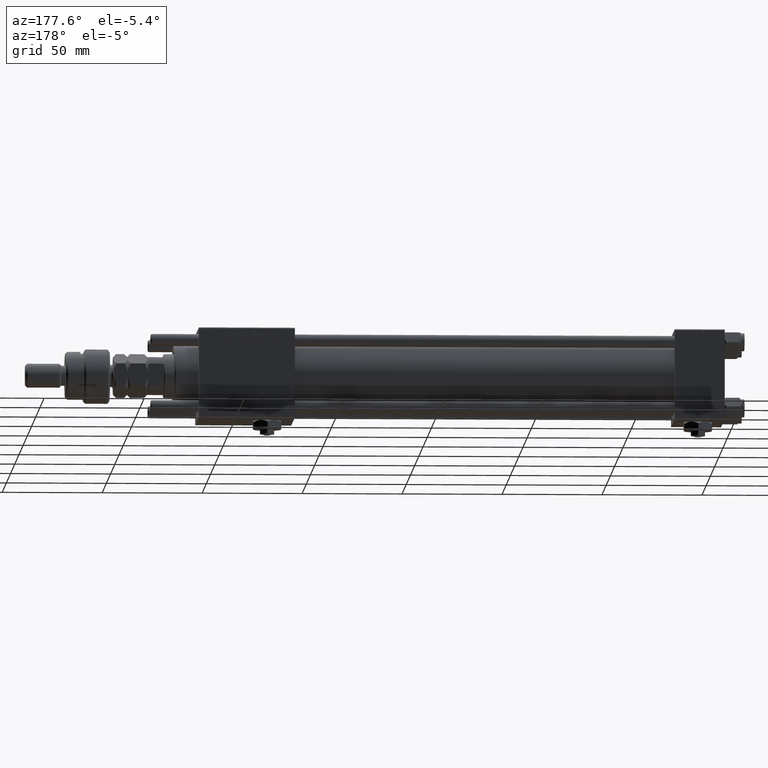
[diagram: clean part render]
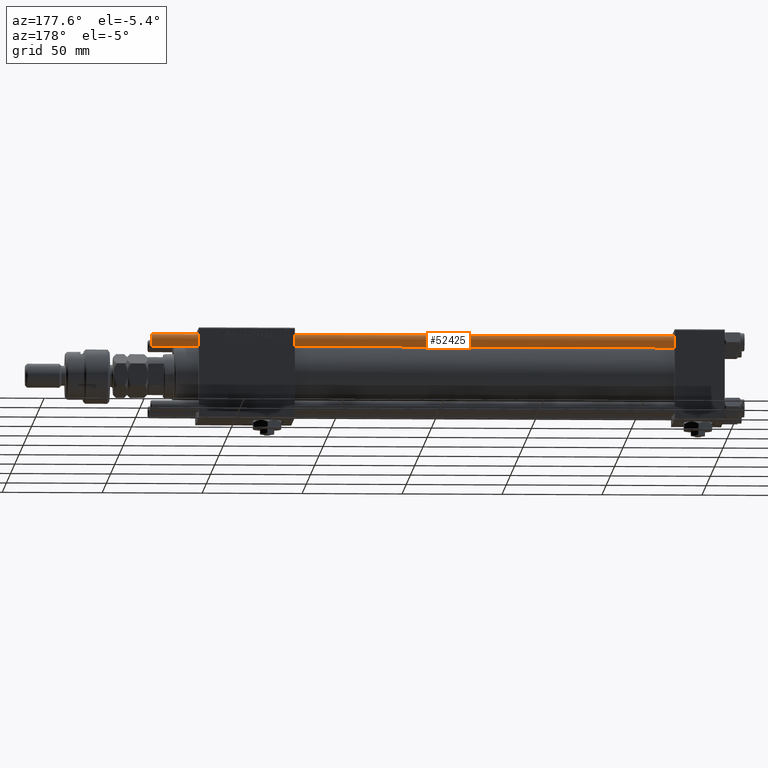
[diagram: same view with one face highlighted and labeled with its STEP entity id]
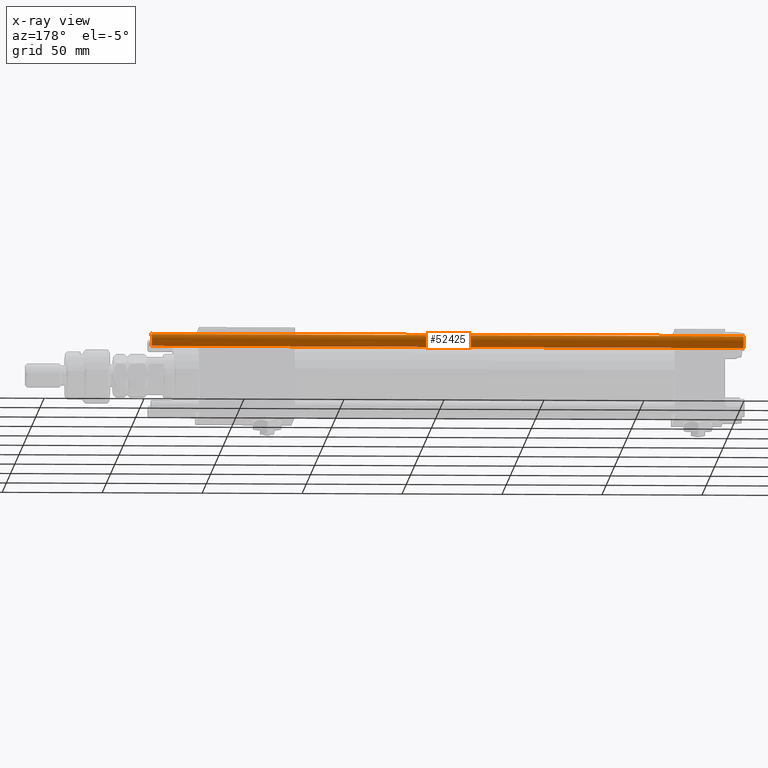
[diagram: x-ray of the same camera — body ghosted, the highlighted face saturated]
A machine part, auxiliary view. The second image highlights one B-rep face of the part: STEP entity #52425.
The next image is the same camera in x-ray: the body ghosted, the highlighted face saturated — about 0% of this face is hidden behind the body in this view.
In plain terms, the highlighted cylindrical surface (edge-blend (fillet) strip) has radius 3 mm, axis along (1, -0, -0).
Its self-contained STEP definition (entity closure, byte-faithful):
#1306 = EDGE_CURVE ( 'NONE', #43273, #22188, #52522, .T. ) ;
#4101 = ORIENTED_EDGE ( 'NONE', *, *, #14958, .T. ) ;
#8744 = DIRECTION ( 'NONE',  ( -0.000000000000000000, -0.000000000000000000, -1.000000000000000000 ) ) ;
#9663 = DIRECTION ( 'NONE',  ( -1.000000000000000000, 0.000000000000000000, 0.000000000000000000 ) ) ;
#10319 = ORIENTED_EDGE ( 'NONE', *, *, #58018, .T. ) ;
#11004 = CARTESIAN_POINT ( 'NONE',  ( 0.000000000000000000, 0.000000000000000000, 0.5000000000000004441 ) ) ;
#11725 = VERTEX_POINT ( 'NONE', #33255 ) ;
#12870 = DIRECTION ( 'NONE',  ( 0.000000000000000000, 0.000000000000000000, -1.000000000000000000 ) ) ;
#13550 = AXIS2_PLACEMENT_3D ( 'NONE', #47696, #12870, #60267 ) ;
#14958 = EDGE_CURVE ( 'NONE', #22188, #35670, #25997, .T. ) ;
#19124 = DIRECTION ( 'NONE',  ( -0.000000000000000000, -0.000000000000000000, -1.000000000000000000 ) ) ;
#21567 = DIRECTION ( 'NONE',  ( -0.000000000000000000, -0.000000000000000000, 1.000000000000000000 ) ) ;
#22188 = VERTEX_POINT ( 'NONE', #50234 ) ;
#25997 = CIRCLE ( 'NONE', #31967, 3.000000000000000444 ) ;
#26561 = DIRECTION ( 'NONE',  ( 1.000000000000000000, 0.000000000000000000, 0.000000000000000000 ) ) ;
#28461 = VECTOR ( 'NONE', #19124, 1000.000000000000000 ) ;
#31460 = CARTESIAN_POINT ( 'NONE',  ( 3.000000000000000444, 3.673940397442060361E-16, 296.5000000000000000 ) ) ;
#31967 = AXIS2_PLACEMENT_3D ( 'NONE', #11004, #21567, #26561 ) ;
#33042 = FACE_OUTER_BOUND ( 'NONE', #41923, .T. ) ;
#33255 = CARTESIAN_POINT ( 'NONE',  ( -3.000000000000000444, 0.000000000000000000, 296.5000000000000000 ) ) ;
#35670 = VERTEX_POINT ( 'NONE', #59099 ) ;
#36450 = CIRCLE ( 'NONE', #13550, 3.000000000000000444 ) ;
#41380 = CARTESIAN_POINT ( 'NONE',  ( -3.000000000000000444, 0.000000000000000000, 297.0000000000000000 ) ) ;
#41687 = LINE ( 'NONE', #41380, #55205 ) ;
#41923 = EDGE_LOOP ( 'NONE', ( #10319, #48428, #4101, #53999 ) ) ;
#42424 = CYLINDRICAL_SURFACE ( 'NONE', #58175, 3.000000000000000444 ) ;
#42858 = CARTESIAN_POINT ( 'NONE',  ( 3.000000000000000444, 3.673940397442060361E-16, 297.0000000000000000 ) ) ;
#43273 = VERTEX_POINT ( 'NONE', #31460 ) ;
#46506 = CARTESIAN_POINT ( 'NONE',  ( 0.000000000000000000, 0.000000000000000000, 297.0000000000000000 ) ) ;
#47696 = CARTESIAN_POINT ( 'NONE',  ( 0.000000000000000000, 0.000000000000000000, 296.5000000000000000 ) ) ;
#48428 = ORIENTED_EDGE ( 'NONE', *, *, #1306, .T. ) ;
#50234 = CARTESIAN_POINT ( 'NONE',  ( 3.000000000000000444, 3.673940397442060361E-16, 0.5000000000000004441 ) ) ;
#52425 = ADVANCED_FACE ( 'NONE', ( #33042 ), #42424, .T. ) ;
#52522 = LINE ( 'NONE', #42858, #28461 ) ;
#53185 = EDGE_CURVE ( 'NONE', #11725, #35670, #41687, .T. ) ;
#53999 = ORIENTED_EDGE ( 'NONE', *, *, #53185, .F. ) ;
#55205 = VECTOR ( 'NONE', #60386, 1000.000000000000000 ) ;
#58018 = EDGE_CURVE ( 'NONE', #11725, #43273, #36450, .T. ) ;
#58175 = AXIS2_PLACEMENT_3D ( 'NONE', #46506, #8744, #9663 ) ;
#59099 = CARTESIAN_POINT ( 'NONE',  ( -3.000000000000000444, 0.000000000000000000, 0.5000000000000004441 ) ) ;
#60267 = DIRECTION ( 'NONE',  ( 1.000000000000000000, 0.000000000000000000, 0.000000000000000000 ) ) ;
#60386 = DIRECTION ( 'NONE',  ( -0.000000000000000000, -0.000000000000000000, -1.000000000000000000 ) ) ;